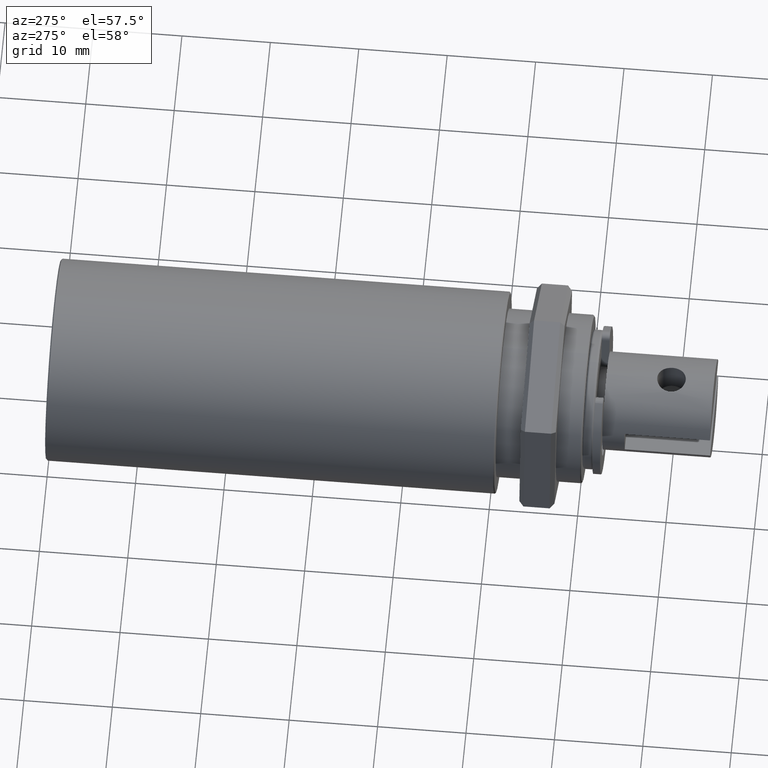
[diagram: clean part render]
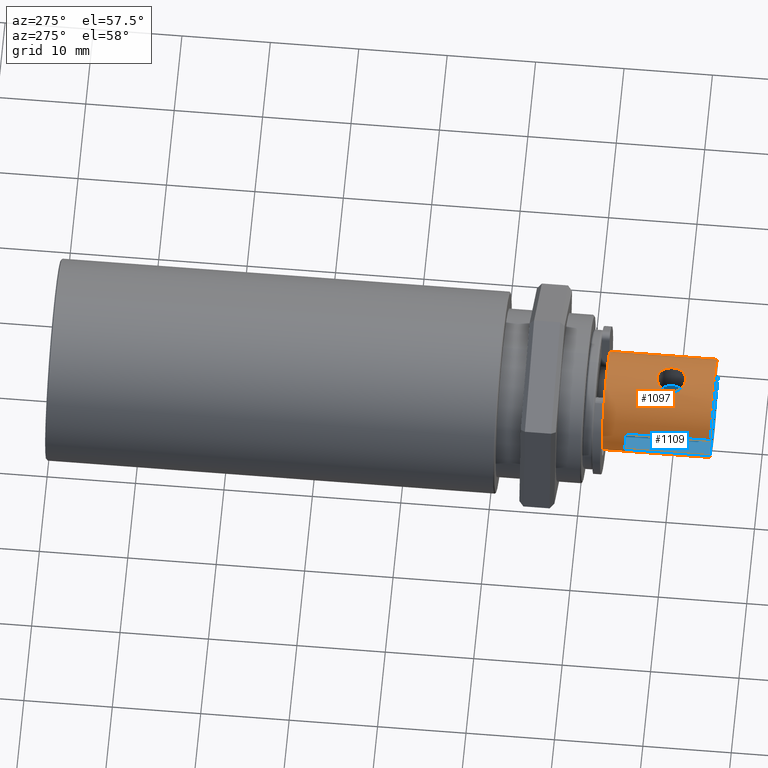
[diagram: same view with the hole feature highlighted: cylindrical wall and planar end face, labeled with their STEP entity ids]
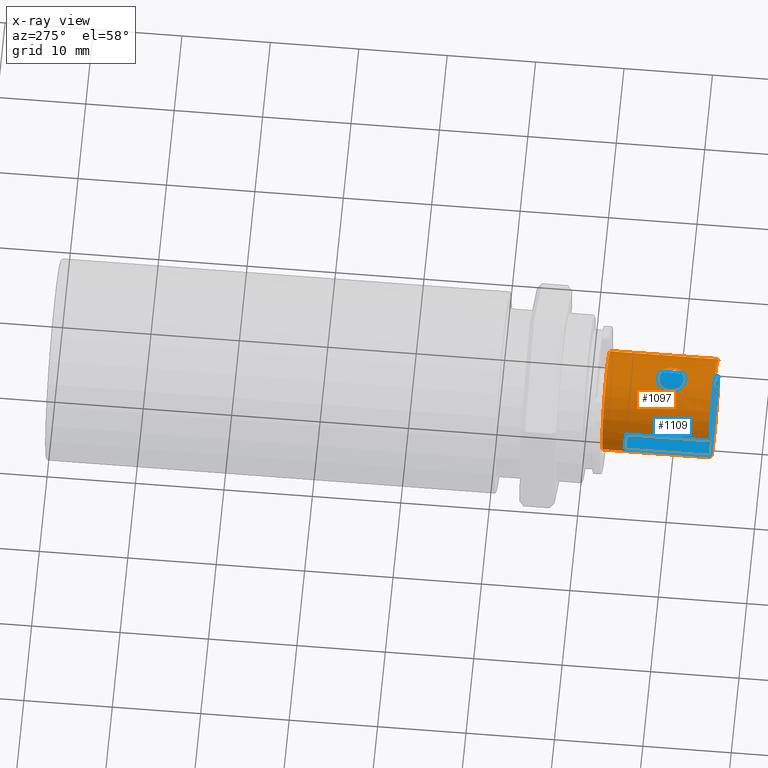
[diagram: x-ray of the same camera — body ghosted, the hole faces saturated]
A machine part, auxiliary view. The highlighted faces form one hole feature of diameter 11.0998 mm: the cylindrical wall (entity #1097, orange) and its adjacent planar end face (entity #1109, blue) — they share a circular edge in the B-rep.
The next image is the same camera in x-ray (body ghosted, the hole faces saturated) — the bore reads through the body.
Wall:
#25=B_SPLINE_CURVE_WITH_KNOTS('',3,(#1883,#1884,#1885,#1886,#1887,#1888,
#1889,#1890,#1891,#1892,#1893),.UNSPECIFIED.,.T.,.F.,(1,1,1,1,1,1,1,1,1,
1,1,1,1,1,1),(-0.00380210394395275,-0.00253473596263517,-0.00126736798131758,
1.76057407009484E-20,0.00126736798131758,0.00253473596263517,0.00380210394395275,
0.00506947192527033,0.00633683990658791,0.0076042078879055,0.00887157586922308,
0.0101389438505407,0.0114063118318582,0.0126736798131758,0.0139410477944934),
 .UNSPECIFIED.);
#26=B_SPLINE_CURVE_WITH_KNOTS('',3,(#1895,#1896,#1897,#1898,#1899,#1900,
#1901,#1902,#1903,#1904,#1905),.UNSPECIFIED.,.T.,.F.,(1,1,1,1,1,1,1,1,1,
1,1,1,1,1,1),(-0.00380210394395274,-0.00253473596263516,-0.00126736798131758,
7.85285365392599E-19,0.00126736798131758,0.00253473596263516,0.00380210394395274,
0.00506947192527032,0.00633683990658791,0.00760420788790549,0.00887157586922307,
0.0101389438505406,0.0114063118318582,0.0126736798131758,0.0139410477944934),
 .UNSPECIFIED.);
#91=CIRCLE('',#1267,0.0055499);
#92=CIRCLE('',#1268,0.0055499);
#93=CIRCLE('',#1269,0.0055499);
#94=CIRCLE('',#1270,0.0055499);
#95=CIRCLE('',#1271,0.0055499);
#128=CYLINDRICAL_SURFACE('',#1266,0.0055499);
#345=ORIENTED_EDGE('',*,*,#513,.F.);
#346=ORIENTED_EDGE('',*,*,#514,.F.);
#347=ORIENTED_EDGE('',*,*,#515,.T.);
#348=ORIENTED_EDGE('',*,*,#516,.F.);
#349=ORIENTED_EDGE('',*,*,#517,.F.);
#350=ORIENTED_EDGE('',*,*,#518,.T.);
#351=ORIENTED_EDGE('',*,*,#519,.F.);
#352=ORIENTED_EDGE('',*,*,#520,.T.);
#353=ORIENTED_EDGE('',*,*,#521,.F.);
#354=ORIENTED_EDGE('',*,*,#522,.F.);
#355=ORIENTED_EDGE('',*,*,#523,.F.);
#513=EDGE_CURVE('',#613,#613,#25,.T.);
#514=EDGE_CURVE('',#614,#614,#26,.T.);
#515=EDGE_CURVE('',#615,#615,#91,.T.);
#516=EDGE_CURVE('',#616,#617,#715,.T.);
#517=EDGE_CURVE('',#618,#616,#92,.T.);
#518=EDGE_CURVE('',#618,#619,#716,.T.);
#519=EDGE_CURVE('',#620,#619,#93,.T.);
#520=EDGE_CURVE('',#620,#621,#717,.F.);
#521=EDGE_CURVE('',#622,#621,#94,.T.);
#522=EDGE_CURVE('',#623,#622,#718,.F.);
#523=EDGE_CURVE('',#617,#623,#95,.T.);
#613=VERTEX_POINT('',#1894);
#614=VERTEX_POINT('',#1906);
#615=VERTEX_POINT('',#1908);
#616=VERTEX_POINT('',#1910);
#617=VERTEX_POINT('',#1911);
#618=VERTEX_POINT('',#1913);
#619=VERTEX_POINT('',#1915);
#620=VERTEX_POINT('',#1917);
#621=VERTEX_POINT('',#1919);
#622=VERTEX_POINT('',#1921);
#623=VERTEX_POINT('',#1923);
#715=LINE('',#1909,#795);
#716=LINE('',#1914,#796);
#717=LINE('',#1918,#797);
#718=LINE('',#1922,#798);
#795=VECTOR('',#1557,1.);
#796=VECTOR('',#1560,1.);
#797=VECTOR('',#1563,1.);
#798=VECTOR('',#1566,1.);
#859=EDGE_LOOP('',(#345));
#860=EDGE_LOOP('',(#346));
#861=EDGE_LOOP('',(#347));
#862=EDGE_LOOP('',(#348,#349,#350,#351,#352,#353,#354,#355));
#961=FACE_BOUND('',#859,.T.);
#962=FACE_BOUND('',#860,.T.);
#963=FACE_BOUND('',#861,.T.);
#964=FACE_BOUND('',#862,.T.);
#1097=ADVANCED_FACE('',(#961,#962,#963,#964),#128,.T.);
#1266=AXIS2_PLACEMENT_3D('',#1882,#1553,#1554);
#1267=AXIS2_PLACEMENT_3D('',#1907,#1555,#1556);
#1268=AXIS2_PLACEMENT_3D('',#1912,#1558,#1559);
#1269=AXIS2_PLACEMENT_3D('',#1916,#1561,#1562);
#1270=AXIS2_PLACEMENT_3D('',#1920,#1564,#1565);
#1271=AXIS2_PLACEMENT_3D('',#1924,#1567,#1568);
#1553=DIRECTION('',(0.,0.,-1.));
#1554=DIRECTION('',(-1.,0.,0.));
#1555=DIRECTION('',(0.,0.,-1.));
#1556=DIRECTION('',(-1.,0.,0.));
#1557=DIRECTION('',(0.,0.,-1.));
#1558=DIRECTION('',(0.,0.,-1.));
#1559=DIRECTION('',(-1.,0.,0.));
#1560=DIRECTION('',(0.,0.,-1.));
#1561=DIRECTION('',(0.,0.,-1.));
#1562=DIRECTION('',(-1.,0.,0.));
#1563=DIRECTION('',(0.,0.,-1.));
#1564=DIRECTION('',(0.,0.,-1.));
#1565=DIRECTION('',(-1.,0.,0.));
#1566=DIRECTION('',(0.,0.,-1.));
#1567=DIRECTION('',(0.,0.,-1.));
#1568=DIRECTION('',(-1.,0.,0.));
#1882=CARTESIAN_POINT('',(0.,0.,0.0208083543884633));
#1883=CARTESIAN_POINT('',(0.00543255317320822,0.00126488124876082,-0.00813508262805588));
#1884=CARTESIAN_POINT('',(0.00560854893009531,-1.44182331156836E-7,-0.00761008305970024));
#1885=CARTESIAN_POINT('',(0.00543265110641052,-0.00126430451943618,-0.00813518513314314));
#1886=CARTESIAN_POINT('',(0.00524918682379489,-0.00178735283283205,-0.00939598162487543));
#1887=CARTESIAN_POINT('',(0.00543277369691651,-0.00126368201876374,-0.0106624669304297));
#1888=CARTESIAN_POINT('',(0.00560841606633984,-9.31880710028426E-7,-0.011185048192833));
#1889=CARTESIAN_POINT('',(0.00543296178296111,0.00126329045059839,-0.0106627394216126));
#1890=CARTESIAN_POINT('',(0.00524916416616469,0.00178730693572318,-0.00939836588510307));
#1891=CARTESIAN_POINT('',(0.00543255317320822,0.00126488124876082,-0.00813508262805588));
#1892=CARTESIAN_POINT('',(0.00560854893009531,-1.44182331156836E-7,-0.00761008305970024));
#1893=CARTESIAN_POINT('',(0.00543265110641052,-0.00126430451943618,-0.00813518513314314));
#1894=CARTESIAN_POINT('',(0.0055499,1.71659280730528E-18,-0.0077851));
#1895=CARTESIAN_POINT('',(-0.00543255317320822,-0.00126488124876082,-0.00813508262805589));
#1896=CARTESIAN_POINT('',(-0.00560854893009531,1.44182331160658E-7,-0.00761008305970024));
#1897=CARTESIAN_POINT('',(-0.00543265110641052,0.00126430451943618,-0.00813518513314314));
#1898=CARTESIAN_POINT('',(-0.00524918682379489,0.00178735283283206,-0.00939598162487542));
#1899=CARTESIAN_POINT('',(-0.00543277369691651,0.00126368201876374,-0.0106624669304297));
#1900=CARTESIAN_POINT('',(-0.00560841606633984,9.31880710037837E-7,-0.011185048192833));
#1901=CARTESIAN_POINT('',(-0.00543296178296111,-0.00126329045059838,-0.0106627394216126));
#1902=CARTESIAN_POINT('',(-0.00524916416616469,-0.00178730693572318,-0.00939836588510307));
#1903=CARTESIAN_POINT('',(-0.00543255317320822,-0.00126488124876082,-0.00813508262805589));
#1904=CARTESIAN_POINT('',(-0.00560854893009531,1.44182331160658E-7,-0.00761008305970024));
#1905=CARTESIAN_POINT('',(-0.00543265110641052,0.00126430451943618,-0.00813518513314314));
#1906=CARTESIAN_POINT('',(-0.0055499,-8.08699220008598E-19,-0.0077851));
#1907=CARTESIAN_POINT('',(0.,0.,-0.00206396980637312));
#1908=CARTESIAN_POINT('',(-0.0055499,0.,-0.00206396980637312));
#1909=CARTESIAN_POINT('',(-0.0015875,-0.00531801031965905,0.0208083543884633));
#1910=CARTESIAN_POINT('',(-0.0015875,-0.00531801031965905,-0.004572));
#1911=CARTESIAN_POINT('',(-0.0015875,-0.00531801031965905,-0.014224));
#1912=CARTESIAN_POINT('',(0.,0.,-0.004572));
#1913=CARTESIAN_POINT('',(0.0015875,-0.00531801031965905,-0.004572));
#1914=CARTESIAN_POINT('',(0.0015875,-0.00531801031965905,0.0208083543884633));
#1915=CARTESIAN_POINT('',(0.0015875,-0.00531801031965905,-0.014224));
#1916=CARTESIAN_POINT('',(0.,0.,-0.014224));
#1917=CARTESIAN_POINT('',(0.0015875,0.00531801031965905,-0.014224));
#1918=CARTESIAN_POINT('',(0.0015875,0.00531801031965905,0.0208083543884633));
#1919=CARTESIAN_POINT('',(0.0015875,0.00531801031965905,-0.004572));
#1920=CARTESIAN_POINT('',(0.,0.,-0.004572));
#1921=CARTESIAN_POINT('',(-0.0015875,0.00531801031965905,-0.004572));
#1922=CARTESIAN_POINT('',(-0.0015875,0.00531801031965905,0.0208083543884633));
#1923=CARTESIAN_POINT('',(-0.0015875,0.00531801031965905,-0.014224));
#1924=CARTESIAN_POINT('',(0.,0.,-0.014224));
End face:
#101=CIRCLE('',#1286,0.0016129);
#382=ORIENTED_EDGE('',*,*,#531,.T.);
#383=ORIENTED_EDGE('',*,*,#533,.T.);
#384=ORIENTED_EDGE('',*,*,#520,.F.);
#385=ORIENTED_EDGE('',*,*,#528,.F.);
#386=ORIENTED_EDGE('',*,*,#518,.F.);
#518=EDGE_CURVE('',#618,#619,#716,.T.);
#520=EDGE_CURVE('',#620,#621,#717,.F.);
#528=EDGE_CURVE('',#619,#620,#720,.T.);
#531=EDGE_CURVE('',#630,#630,#101,.T.);
#533=EDGE_CURVE('',#618,#621,#722,.T.);
#618=VERTEX_POINT('',#1913);
#619=VERTEX_POINT('',#1915);
#620=VERTEX_POINT('',#1917);
#621=VERTEX_POINT('',#1919);
#630=VERTEX_POINT('',#1948);
#716=LINE('',#1914,#796);
#717=LINE('',#1918,#797);
#720=LINE('',#1938,#800);
#722=LINE('',#1951,#802);
#796=VECTOR('',#1560,1.);
#797=VECTOR('',#1563,1.);
#800=VECTOR('',#1586,1.);
#802=VECTOR('',#1604,1.);
#881=EDGE_LOOP('',(#382));
#882=EDGE_LOOP('',(#383,#384,#385,#386));
#984=FACE_BOUND('',#881,.T.);
#985=FACE_BOUND('',#882,.T.);
#1045=PLANE('',#1289);
#1109=ADVANCED_FACE('',(#984,#985),#1045,.F.);
#1286=AXIS2_PLACEMENT_3D('',#1947,#1599,#1600);
#1289=AXIS2_PLACEMENT_3D('',#1953,#1607,#1608);
#1560=DIRECTION('',(0.,0.,-1.));
#1563=DIRECTION('',(0.,0.,-1.));
#1586=DIRECTION('',(0.,1.,0.));
#1599=DIRECTION('',(1.,0.,0.));
#1600=DIRECTION('',(0.,0.,-1.));
#1604=DIRECTION('',(0.,1.,0.));
#1607=DIRECTION('',(1.,0.,0.));
#1608=DIRECTION('',(0.,1.,0.));
#1913=CARTESIAN_POINT('',(0.0015875,-0.00531801031965905,-0.004572));
#1914=CARTESIAN_POINT('',(0.0015875,-0.00531801031965905,0.0208083543884633));
#1915=CARTESIAN_POINT('',(0.0015875,-0.00531801031965905,-0.014224));
#1917=CARTESIAN_POINT('',(0.0015875,0.00531801031965905,-0.014224));
#1918=CARTESIAN_POINT('',(0.0015875,0.00531801031965905,0.0208083543884633));
#1919=CARTESIAN_POINT('',(0.0015875,0.00531801031965905,-0.004572));
#1938=CARTESIAN_POINT('',(0.0015875,0.,-0.014224));
#1947=CARTESIAN_POINT('',(0.0015875,1.7347234759768E-18,-0.009398));
#1948=CARTESIAN_POINT('',(0.0015875,1.7347234759768E-18,-0.0110109));
#1951=CARTESIAN_POINT('',(0.0015875,0.,-0.004572));
#1953=CARTESIAN_POINT('',(0.0015875,0.,-0.009398));